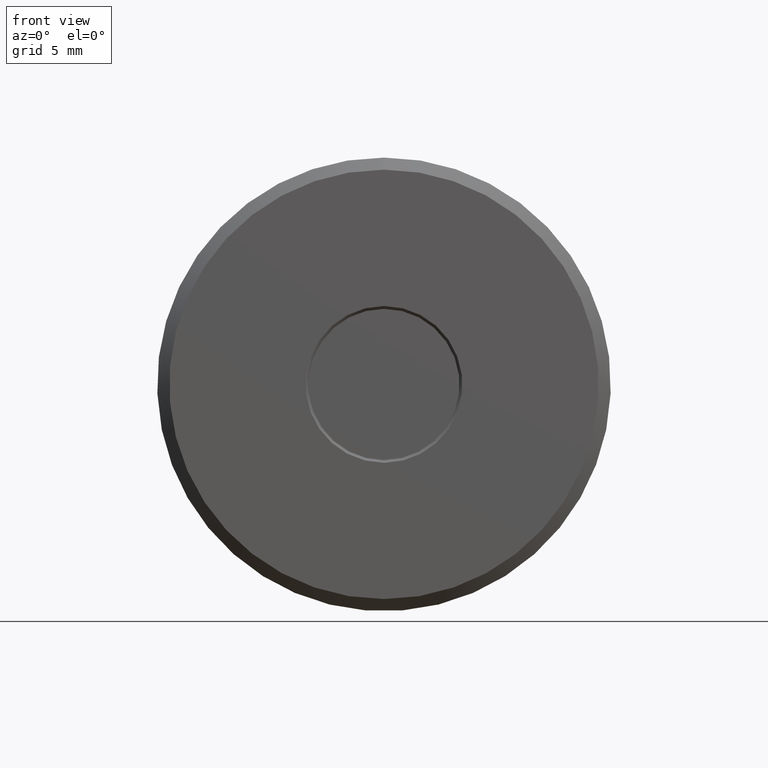
[diagram: clean part render]
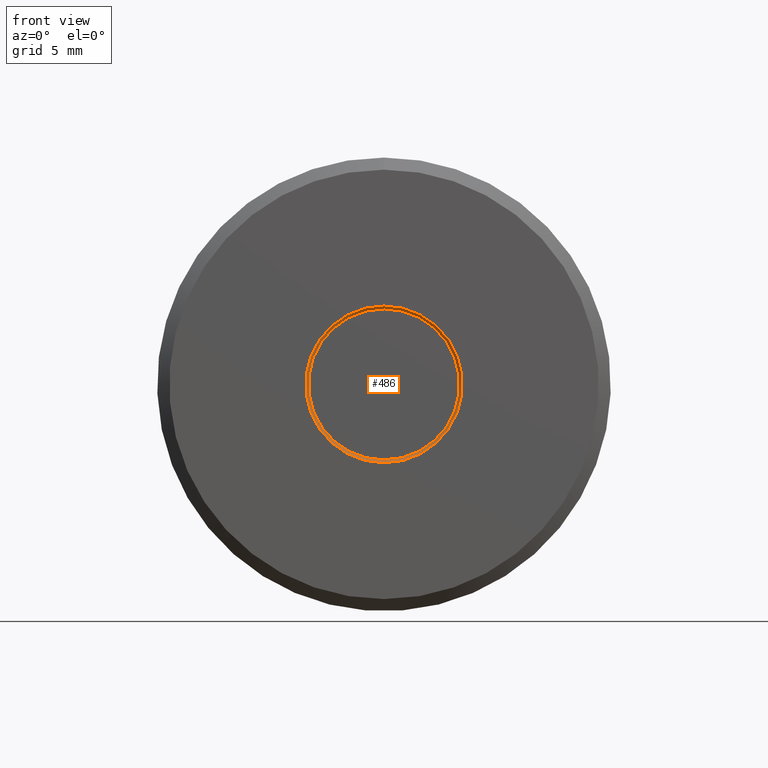
[diagram: same view with one face highlighted and labeled with its STEP entity id]
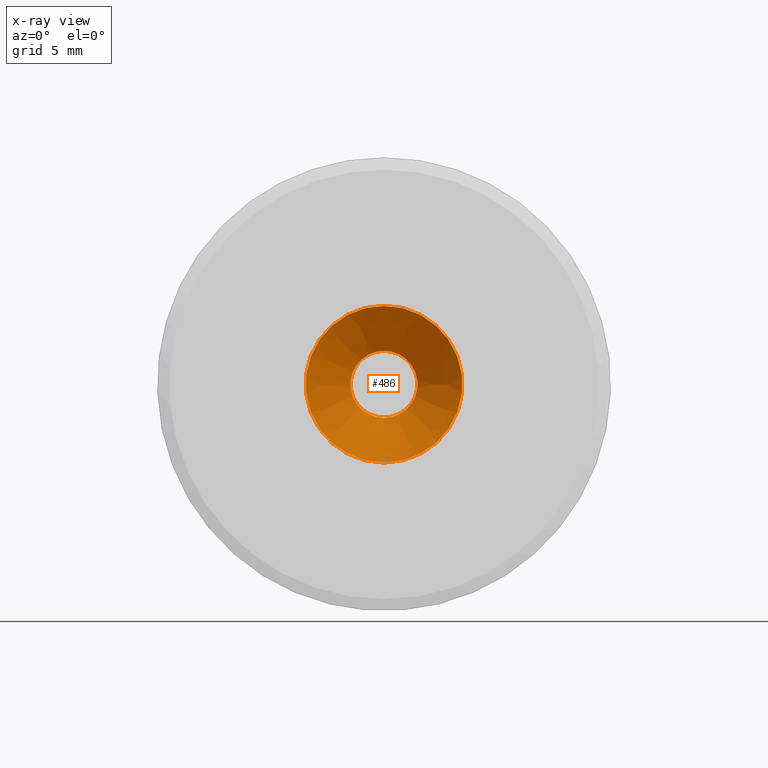
[diagram: x-ray of the same camera — body ghosted, the highlighted face saturated]
A machine part, front view. The second image highlights one B-rep face of the part: STEP entity #486.
The next image is the same camera in x-ray: the body ghosted, the highlighted face saturated — about 0% of this face is hidden behind the body in this view.
In plain terms, the highlighted conical surface has half-angle 45 deg.
Its self-contained STEP definition (entity closure, byte-faithful):
#3 = EDGE_CURVE ( 'NONE', #342, #342, #218, .T. ) ;
#7 = CARTESIAN_POINT ( 'NONE',  ( 0.0000000000000000000, 0.1114460678118654500, 0.08299999999999999000 ) ) ;
#34 = DIRECTION ( 'NONE',  ( 0.0000000000000000000, 0.0000000000000000000, -1.000000000000000000 ) ) ;
#72 = CARTESIAN_POINT ( 'NONE',  ( 0.0000000000000000000, 0.0000000000000000000, 0.1944460678118641900 ) ) ;
#80 = DIRECTION ( 'NONE',  ( -0.0000000000000000000, 1.000000000000000000, -0.0000000000000000000 ) ) ;
#101 = DIRECTION ( 'NONE',  ( -0.0000000000000000000, 1.000000000000000000, -0.0000000000000000000 ) ) ;
#120 = CONICAL_SURFACE ( 'NONE', #345, 0.1944460678118641900, 0.7853981633974427300 ) ;
#139 = EDGE_LOOP ( 'NONE', ( #142 ) ) ;
#142 = ORIENTED_EDGE ( 'NONE', *, *, #3, .F. ) ;
#145 = AXIS2_PLACEMENT_3D ( 'NONE', #341, #101, #209 ) ;
#159 = EDGE_LOOP ( 'NONE', ( #311 ) ) ;
#170 = VERTEX_POINT ( 'NONE', #7 ) ;
#199 = CARTESIAN_POINT ( 'NONE',  ( 0.0000000000000000000, 0.0000000000000000000, 0.0000000000000000000 ) ) ;
#209 = DIRECTION ( 'NONE',  ( 0.0000000000000000000, 0.0000000000000000000, 1.000000000000000000 ) ) ;
#218 = CIRCLE ( 'NONE', #145, 0.1944460678118641900 ) ;
#310 = CIRCLE ( 'NONE', #524, 0.08299999999999999000 ) ;
#311 = ORIENTED_EDGE ( 'NONE', *, *, #350, .T. ) ;
#341 = CARTESIAN_POINT ( 'NONE',  ( 0.0000000000000000000, 0.0000000000000000000, 0.0000000000000000000 ) ) ;
#342 = VERTEX_POINT ( 'NONE', #72 ) ;
#345 = AXIS2_PLACEMENT_3D ( 'NONE', #199, #428, #34 ) ;
#350 = EDGE_CURVE ( 'NONE', #170, #170, #310, .T. ) ;
#378 = FACE_BOUND ( 'NONE', #159, .T. ) ;
#428 = DIRECTION ( 'NONE',  ( 0.0000000000000000000, -1.000000000000000000, 0.0000000000000000000 ) ) ;
#465 = DIRECTION ( 'NONE',  ( 0.0000000000000000000, 0.0000000000000000000, 1.000000000000000000 ) ) ;
#472 = FACE_OUTER_BOUND ( 'NONE', #139, .T. ) ;
#486 = ADVANCED_FACE ( 'NONE', ( #378, #472 ), #120, .F. ) ;
#501 = CARTESIAN_POINT ( 'NONE',  ( 0.0000000000000000000, 0.1114460678118654500, 0.0000000000000000000 ) ) ;
#524 = AXIS2_PLACEMENT_3D ( 'NONE', #501, #80, #465 ) ;